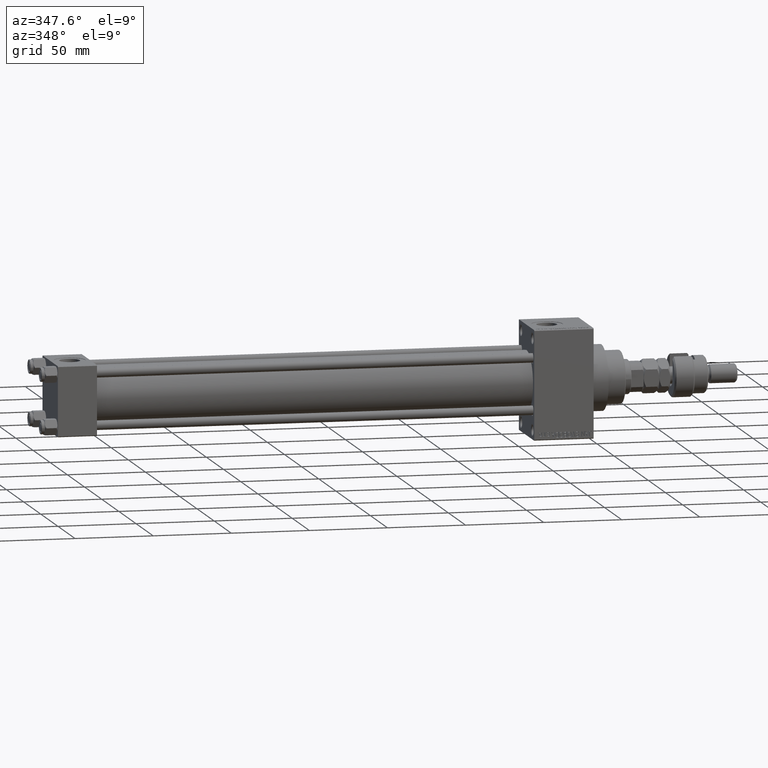
[diagram: clean part render]
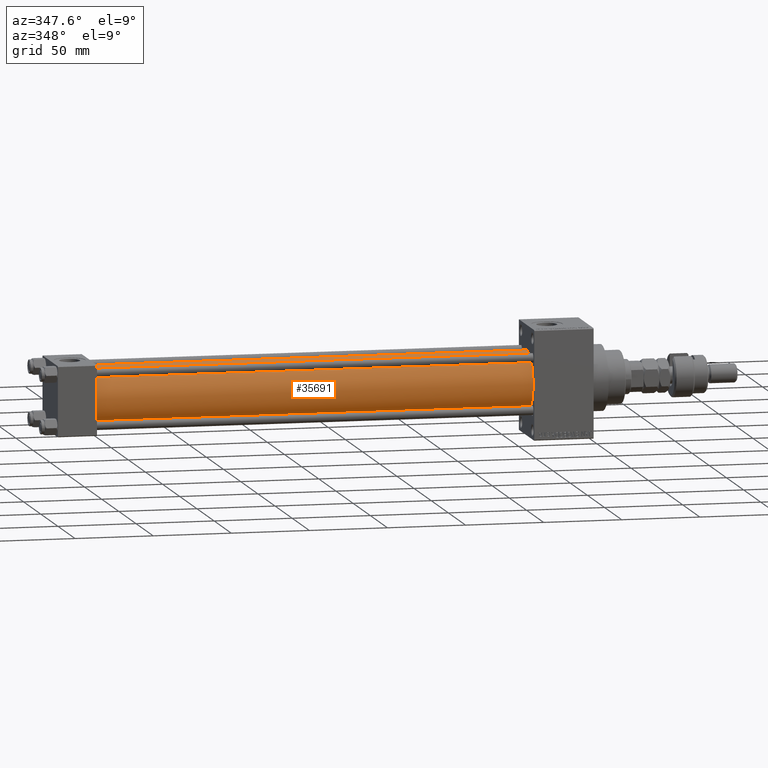
[diagram: same view with one face highlighted and labeled with its STEP entity id]
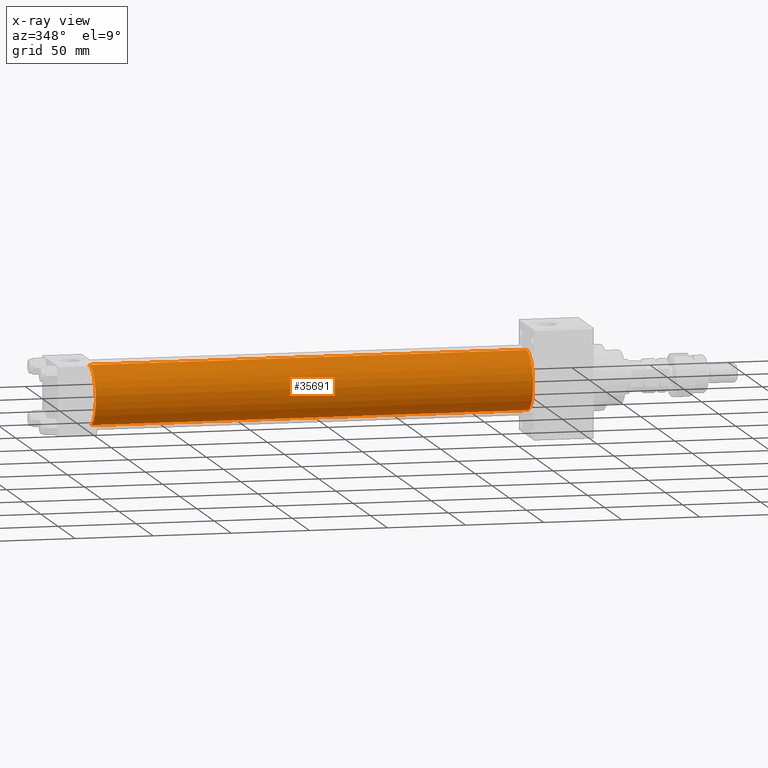
[diagram: x-ray of the same camera — body ghosted, the highlighted face saturated]
A machine part, auxiliary view. The second image highlights one B-rep face of the part: STEP entity #35691.
The next image is the same camera in x-ray: the body ghosted, the highlighted face saturated — about 0% of this face is hidden behind the body in this view.
In plain terms, the highlighted cylindrical surface (edge-blend (fillet) strip) has radius 19 mm, axis along (-1, -0, -0).
Its self-contained STEP definition (entity closure, byte-faithful):
#2266 = EDGE_CURVE ( 'NONE', #20058, #24069, #10334, .T. ) ;
#2449 = CARTESIAN_POINT ( 'NONE',  ( 305.0000000000000568, -2.752562955852396712E-16, -19.00000000000000000 ) ) ;
#3134 = ORIENTED_EDGE ( 'NONE', *, *, #15376, .F. ) ;
#4014 = DIRECTION ( 'NONE',  ( 1.000000000000000000, -0.000000000000000000, 0.000000000000000000 ) ) ;
#5875 = EDGE_CURVE ( 'NONE', #35395, #15293, #47735, .T. ) ;
#6239 = DIRECTION ( 'NONE',  ( -1.000000000000000000, -0.000000000000000000, -0.000000000000000000 ) ) ;
#6690 = EDGE_CURVE ( 'NONE', #15293, #24069, #20427, .T. ) ;
#6979 = EDGE_LOOP ( 'NONE', ( #28949, #3134, #13196, #47433 ) ) ;
#7965 = AXIS2_PLACEMENT_3D ( 'NONE', #37747, #6239, #25689 ) ;
#9730 = AXIS2_PLACEMENT_3D ( 'NONE', #39940, #23914, #23392 ) ;
#10334 = LINE ( 'NONE', #2449, #13562 ) ;
#13196 = ORIENTED_EDGE ( 'NONE', *, *, #5875, .T. ) ;
#13562 = VECTOR ( 'NONE', #50238, 1000.000000000000000 ) ;
#13931 = CIRCLE ( 'NONE', #9730, 19.00000000000000000 ) ;
#15293 = VERTEX_POINT ( 'NONE', #26035 ) ;
#15376 = EDGE_CURVE ( 'NONE', #35395, #20058, #13931, .T. ) ;
#17881 = VECTOR ( 'NONE', #39876, 1000.000000000000000 ) ;
#20058 = VERTEX_POINT ( 'NONE', #38514 ) ;
#20427 = CIRCLE ( 'NONE', #41376, 19.00000000000000000 ) ;
#23392 = DIRECTION ( 'NONE',  ( 0.000000000000000000, 0.000000000000000000, -1.000000000000000000 ) ) ;
#23850 = CARTESIAN_POINT ( 'NONE',  ( 305.0000000000000568, -2.602085213965210642E-15, 19.00000000000000000 ) ) ;
#23914 = DIRECTION ( 'NONE',  ( 1.000000000000000000, 0.000000000000000000, 0.000000000000000000 ) ) ;
#24069 = VERTEX_POINT ( 'NONE', #34362 ) ;
#24507 = DIRECTION ( 'NONE',  ( 0.000000000000000000, 0.000000000000000000, 1.000000000000000000 ) ) ;
#25689 = DIRECTION ( 'NONE',  ( 0.000000000000000000, 0.000000000000000000, 1.000000000000000000 ) ) ;
#26035 = CARTESIAN_POINT ( 'NONE',  ( 25.00000000000002132, -2.602085213965210642E-15, 19.00000000000000000 ) ) ;
#28949 = ORIENTED_EDGE ( 'NONE', *, *, #2266, .F. ) ;
#34194 = CARTESIAN_POINT ( 'NONE',  ( 305.0000000000000568, -2.602085213965210642E-15, 19.00000000000000000 ) ) ;
#34362 = CARTESIAN_POINT ( 'NONE',  ( 25.00000000000002132, -2.752562955852396712E-16, -19.00000000000000000 ) ) ;
#34577 = FACE_OUTER_BOUND ( 'NONE', #6979, .T. ) ;
#35395 = VERTEX_POINT ( 'NONE', #34194 ) ;
#35691 = ADVANCED_FACE ( 'NONE', ( #34577 ), #45621, .T. ) ;
#37747 = CARTESIAN_POINT ( 'NONE',  ( 305.0000000000000568, -2.602085213965210642E-15, 0.000000000000000000 ) ) ;
#38514 = CARTESIAN_POINT ( 'NONE',  ( 305.0000000000000568, -2.752562955852396712E-16, -19.00000000000000000 ) ) ;
#39748 = CARTESIAN_POINT ( 'NONE',  ( 25.00000000000002132, -2.602085213965210642E-15, 0.000000000000000000 ) ) ;
#39876 = DIRECTION ( 'NONE',  ( -1.000000000000000000, -0.000000000000000000, -0.000000000000000000 ) ) ;
#39940 = CARTESIAN_POINT ( 'NONE',  ( 305.0000000000000568, -2.602085213965210642E-15, 0.000000000000000000 ) ) ;
#41376 = AXIS2_PLACEMENT_3D ( 'NONE', #39748, #4014, #24507 ) ;
#45621 = CYLINDRICAL_SURFACE ( 'NONE', #7965, 19.00000000000000000 ) ;
#47433 = ORIENTED_EDGE ( 'NONE', *, *, #6690, .T. ) ;
#47735 = LINE ( 'NONE', #23850, #17881 ) ;
#50238 = DIRECTION ( 'NONE',  ( -1.000000000000000000, -0.000000000000000000, -0.000000000000000000 ) ) ;